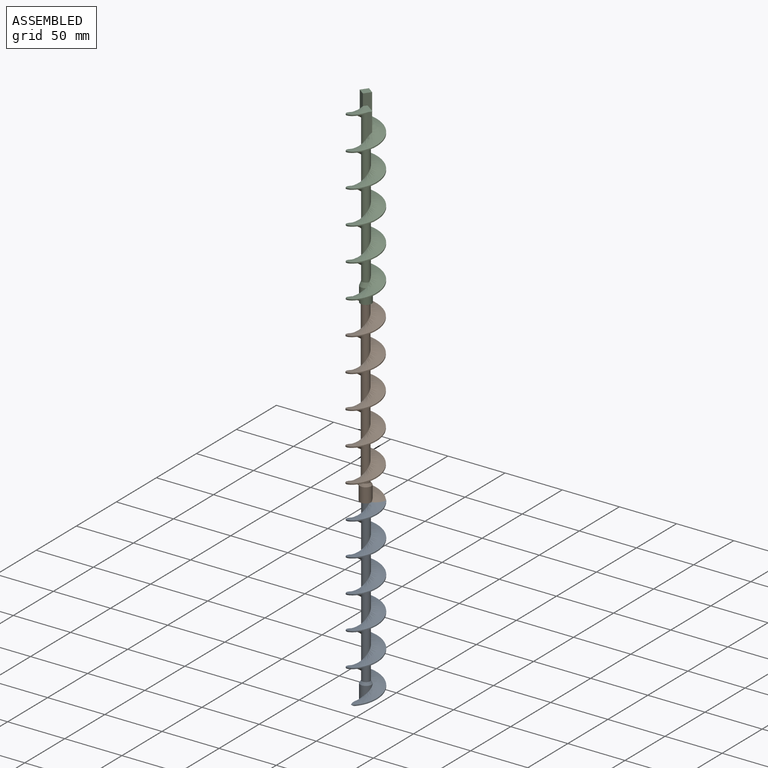
[diagram: assembled view]
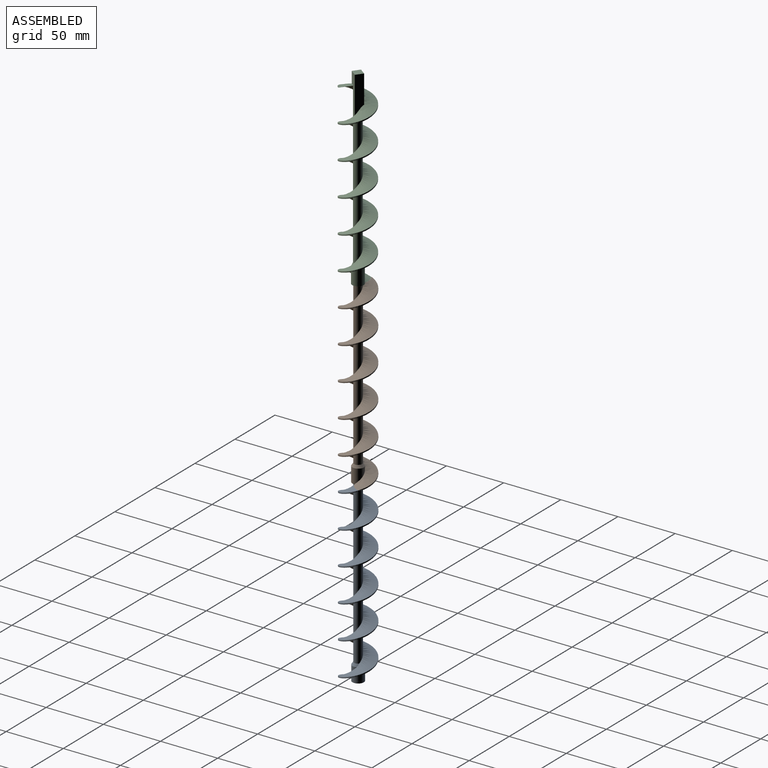
[diagram: assembled view, second angle]
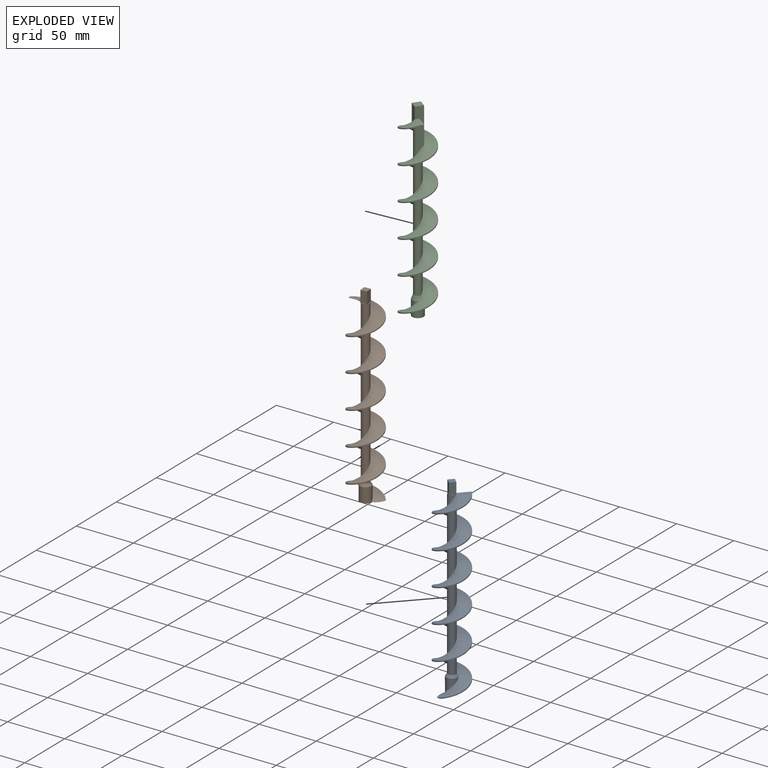
[diagram: exploded view]
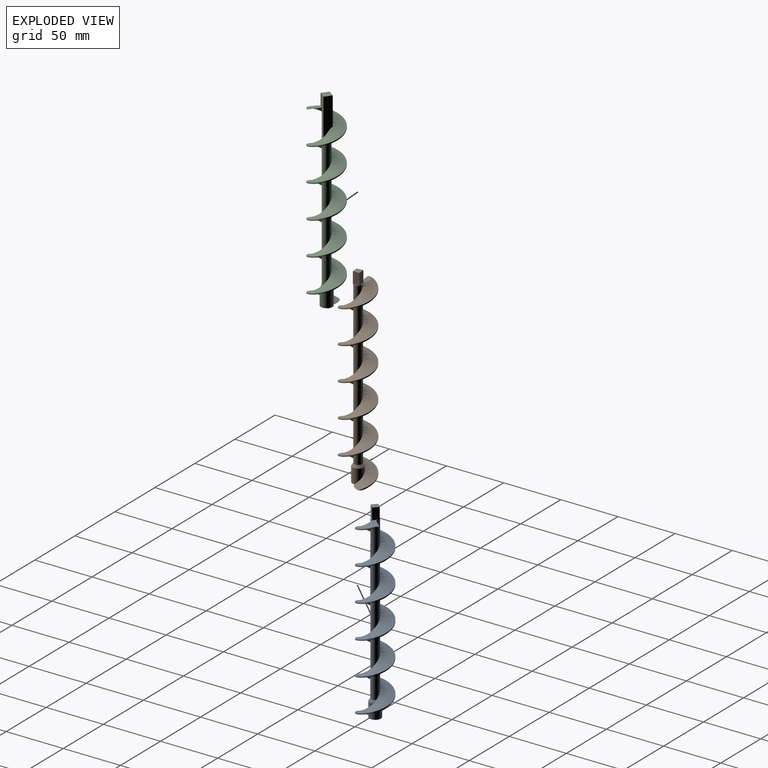
[diagram: exploded view, second angle]
ASSEMBLY  parts=3 mates=2
PART A: 26 faces, bbox 29x30.5x169.5 mm
  f0: plane 17.46x14.95mm, normal (0,0,-1), area 84.3mm2, adj f6,f7,f8,f9,f19,f20,f21,f22
  f1: cylinder r=3.5mm len=142mm, axis (0,0,-1), area 2669.5mm2, adj f2,f3,f4,f5,f7,f8,f10,f11
  f2: plane 4.33x0.75mm, normal (0,0,1), area 2.2mm2, adj f1,f14
  f3: plane 4.33x0.75mm, normal (0,0,1), area 2.2mm2, adj f1,f13
  f4: plane 4.33x0.75mm, normal (0,0,1), area 2.2mm2, adj f1,f12
  f5: plane 12x6.63mm, normal (0,0,1), area 48.9mm2, adj f1,f7,f8,f9,f11,f14
  f6: plane 0.32x0.09mm, normal (0,-1,0), area 0mm2, adj f0,f7,f19
  f7: bspline ~163.42x30.49mm, area 3893.3mm2, adj f0,f1,f5,f6,f9,f10,f19,f25
  f8: bspline ~160.42x30.49mm, area 3787.3mm2, adj f0,f1,f5,f9,f19,f25
  f9: cylinder r=14.5mm len=157mm, axis (0,0,1), area 591.4mm2, adj f0,f5,f7,f8
  f10: plane 0.34x0.13mm, normal (0,0,-1), area 0mm2, adj f1,f7,f14
  f11: plane 11.03x5.53mm, normal (-1,0,0), area 55.4mm2, adj f1,f5,f12,f14,f15,f18
  f12: plane 11.03x5.53mm, normal (0,-1,0), area 55.7mm2, adj f1,f4,f11,f13,f15,f17,f18
  f13: plane 11.03x5.53mm, normal (1,0,0), area 55.7mm2, adj f1,f3,f12,f14,f15,f16,f17
  f14: plane 11.03x5.53mm, normal (0,1,0), area 55.4mm2, adj f1,f2,f5,f10,f11,f13,f15,f16
  f15: plane 5.5x5.5mm, normal (0,0,1), area 30.2mm2, adj f11,f12,f13,f14
  f16: cone r=4mm half-angle=26.6deg, axis (0,0,1), area 0.4mm2, adj f1,f13,f14
  f17: cone r=4mm half-angle=26.6deg, axis (0,0,1), area 0.4mm2, adj f1,f12,f13
  f18: cone r=4mm half-angle=26.6deg, axis (0,0,1), area 0.4mm2, adj f1,f11,f12
  f19: cylinder r=5mm len=12.75mm, axis (0,0,-1), area 351.3mm2, adj f0,f6,f7,f8,f25
  f20: plane 10x4.44mm, normal (-0.67,0.74,0), area 60mm2, adj f0,f21,f23,f24
  f21: plane 10x4.44mm, normal (0.74,0.67,0), area 60mm2, adj f0,f20,f22,f24
  f22: plane 10x4.44mm, normal (0.67,-0.74,0), area 60mm2, adj f0,f21,f23,f24
  f23: plane 10x4.44mm, normal (-0.74,-0.67,0), area 60mm2, adj f0,f20,f22,f24
  f24: plane 8.48x8.48mm, normal (0,0,-1), area 36mm2, adj f20,f21,f22,f23
  f25: cone r=5.5mm half-angle=33.7deg, axis (0,0,-1), area 62.9mm2, adj f1,f7,f8,f19
PART B: same geometry as A
PART C: 19 faces, bbox 29x30.5x169.5 mm
  f0: plane 17.46x14.95mm, normal (0,0,-1), area 84.3mm2, adj f8,f9,f10,f11,f12,f13,f14,f15
  f1: cylinder r=3.5mm len=139.92mm, axis (0,0,-1), area 2411.1mm2, adj f5,f9,f10,f18
  f2: plane 17.43x7mm, normal (0,1,0), area 94.6mm2, adj f3,f5,f6,f9
  f3: plane 24.7x7mm, normal (1,0,0), area 145.7mm2, adj f2,f4,f6,f9
  f4: plane 32.01x7mm, normal (0,-1,0), area 196.7mm2, adj f3,f5,f6,f9
  f5: plane 35.25x7mm, normal (-1,0,0), area 151.8mm2, adj f1,f2,f4,f6,f7,f9,f10
  f6: plane 7x7mm, normal (0,0,1), area 49mm2, adj f2,f3,f4,f5
  f7: plane 11.01x4.74mm, normal (0,0,1), area 45.4mm2, adj f5,f9,f10,f11
  f8: plane 0.32x0.09mm, normal (0,-1,0), area 0mm2, adj f0,f9,f12
  f9: bspline ~163.42x30.49mm, area 3876.4mm2, adj f0,f1,f2,f3,f4,f5,f7,f8
  f10: bspline ~160.42x30.49mm, area 3787.6mm2, adj f0,f1,f5,f7,f11,f12,f18
  f11: cylinder r=14.5mm len=157mm, axis (0,0,1), area 591.4mm2, adj f0,f7,f9,f10
  f12: cylinder r=5mm len=13.25mm, axis (0,0,-1), area 365.1mm2, adj f0,f8,f9,f10,f18
  f13: plane 10x4.55mm, normal (0.76,0.65,0), area 60mm2, adj f0,f14,f16,f17
  f14: plane 10x4.55mm, normal (0.65,-0.76,0), area 60mm2, adj f0,f13,f15,f17
  f15: plane 10x4.55mm, normal (-0.76,-0.65,0), area 60mm2, adj f0,f14,f16,f17
  f16: plane 10x4.55mm, normal (-0.65,0.76,0), area 60mm2, adj f0,f13,f15,f17
  f17: plane 8.46x8.46mm, normal (0,0,-1), area 36mm2, adj f13,f14,f15,f16
  f18: cone r=5.5mm half-angle=21.8deg, axis (0,0,-1), area 93.9mm2, adj f1,f9,f10,f12
PLACE A rot(axis=(0,0,-1),133.8deg) t=(-202.73,116,497.43)mm
PLACE B rot(axis=(0,0,1),3.9deg) t=(-202.9,115.82,654.43)mm
PLACE C rot(axis=(0,0,1),143.2deg) t=(-202.65,115.84,811.43)mm
MATE fastened B.f11 <-> C.f15  axis (-1,-0.07,0) through (-205.65,115.63,824.93)mm
MATE fastened B.f23 <-> A.f11  axis (-0.69,-0.72,0) through (-200.83,117.99,667.93)mm
